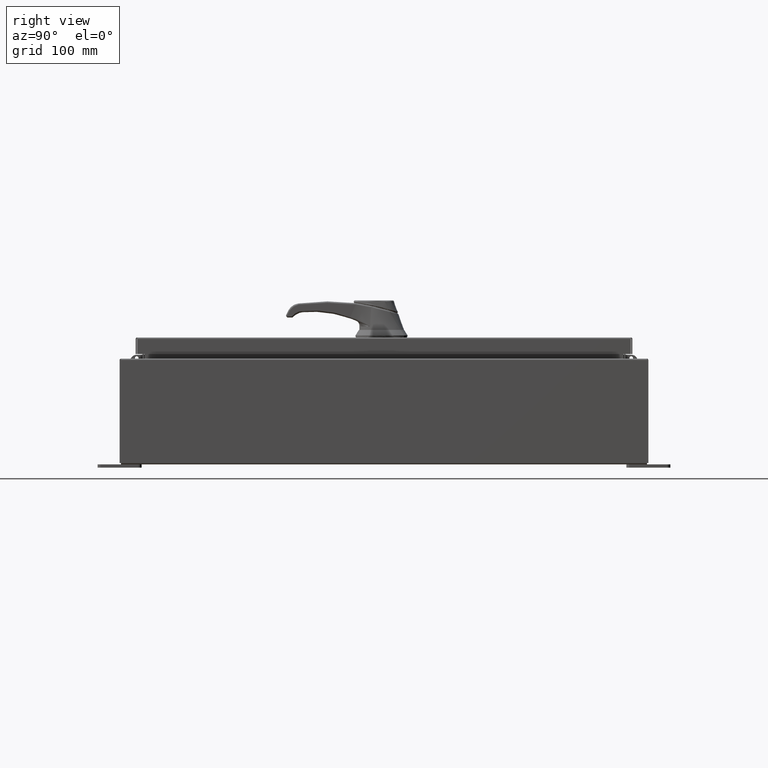
[diagram: clean part render]
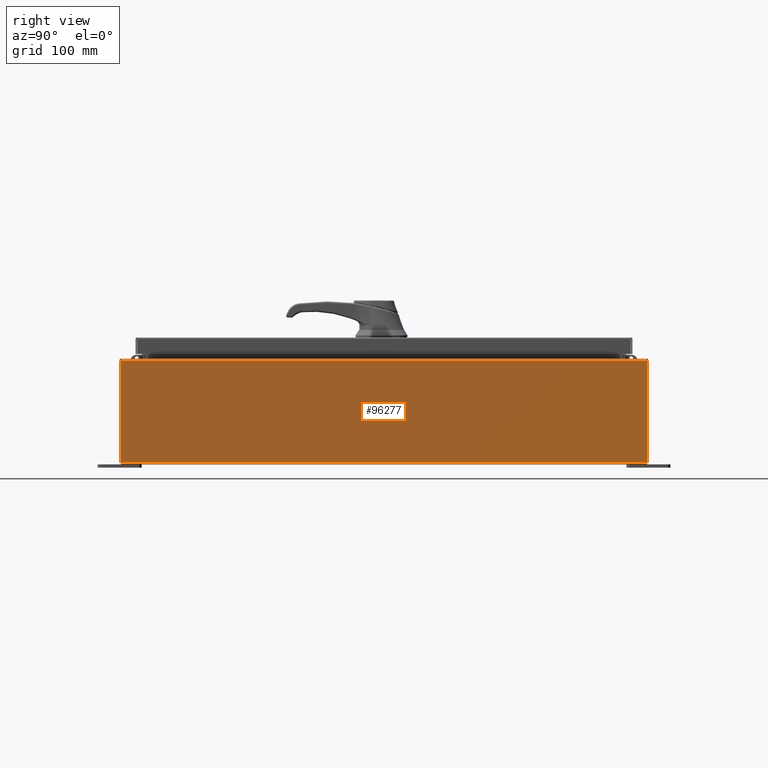
[diagram: same view with one face highlighted and labeled with its STEP entity id]
A machine part, right view. The second image highlights one B-rep face of the part: STEP entity #96277.
In plain terms, the highlighted planar face has unit normal (-1, 0, 0).
Its self-contained STEP definition (entity closure, byte-faithful):
#1147 = ORIENTED_EDGE ( 'NONE', *, *, #93984, .T. ) ;
#1324 = EDGE_LOOP ( 'NONE', ( #49516, #102428, #17170, #1147 ) ) ;
#1585 = VERTEX_POINT ( 'NONE', #83836 ) ;
#3415 = FACE_OUTER_BOUND ( 'NONE', #1324, .T. ) ;
#7787 = DIRECTION ( 'NONE',  ( 3.319545939341922000E-015, 0.0000000000000000000, 1.000000000000000000 ) ) ;
#17170 = ORIENTED_EDGE ( 'NONE', *, *, #58249, .F. ) ;
#20392 = VECTOR ( 'NONE', #59101, 39.37007874015748100 ) ;
#24831 = CARTESIAN_POINT ( 'NONE',  ( 12.00000000000001600, -14.92530000000000200, 5.837600000000001000 ) ) ;
#26323 = DIRECTION ( 'NONE',  ( -3.319545939341922800E-015, 0.0000000000000000000, -1.000000000000000000 ) ) ;
#38133 = VECTOR ( 'NONE', #104980, 39.37007874015748100 ) ;
#38766 = AXIS2_PLACEMENT_3D ( 'NONE', #44156, #62520, #7787 ) ;
#44156 = CARTESIAN_POINT ( 'NONE',  ( 11.99999999999999600, 0.0000000000000000000, -4.009536492811462900E-014 ) ) ;
#49516 = ORIENTED_EDGE ( 'NONE', *, *, #66091, .T. ) ;
#49968 = CARTESIAN_POINT ( 'NONE',  ( 12.00000000000001600, 14.92530000000000200, 5.837600000000001000 ) ) ;
#51498 = VERTEX_POINT ( 'NONE', #24831 ) ;
#52598 = CARTESIAN_POINT ( 'NONE',  ( 11.99999999999999600, -14.92530000000000000, 0.01299999999999998900 ) ) ;
#53334 = PLANE ( 'NONE',  #38766 ) ;
#58249 = EDGE_CURVE ( 'NONE', #77246, #93357, #101635, .T. ) ;
#59101 = DIRECTION ( 'NONE',  ( -0.0000000000000000000, -1.000000000000000000, -0.0000000000000000000 ) ) ;
#62520 = DIRECTION ( 'NONE',  ( -1.000000000000000000, 0.0000000000000000000, 3.319545939341922000E-015 ) ) ;
#66091 = EDGE_CURVE ( 'NONE', #1585, #51498, #68996, .T. ) ;
#66919 = LINE ( 'NONE', #81175, #115605 ) ;
#68432 = CARTESIAN_POINT ( 'NONE',  ( 11.99999999999999600, 14.92530000000000000, -4.009536492811462900E-014 ) ) ;
#68996 = LINE ( 'NONE', #49968, #20392 ) ;
#77183 = VECTOR ( 'NONE', #96017, 39.37007874015748100 ) ;
#77246 = VERTEX_POINT ( 'NONE', #109683 ) ;
#77464 = CARTESIAN_POINT ( 'NONE',  ( 11.99999999999999600, -14.92530000000000000, 0.01299999999999986400 ) ) ;
#81175 = CARTESIAN_POINT ( 'NONE',  ( 11.99999999999999600, -14.92530000000000000, -4.009536492811462900E-014 ) ) ;
#82669 = LINE ( 'NONE', #68432, #38133 ) ;
#83836 = CARTESIAN_POINT ( 'NONE',  ( 12.00000000000001600, 14.92530000000000200, 5.837600000000001000 ) ) ;
#91791 = EDGE_CURVE ( 'NONE', #51498, #93357, #66919, .T. ) ;
#93357 = VERTEX_POINT ( 'NONE', #52598 ) ;
#93984 = EDGE_CURVE ( 'NONE', #77246, #1585, #82669, .T. ) ;
#96017 = DIRECTION ( 'NONE',  ( 2.430368545829587400E-031, -1.000000000000000000, 7.321388497823866900E-017 ) ) ;
#96277 = ADVANCED_FACE ( 'NONE', ( #3415 ), #53334, .F. ) ;
#101635 = LINE ( 'NONE', #77464, #77183 ) ;
#102428 = ORIENTED_EDGE ( 'NONE', *, *, #91791, .T. ) ;
#104980 = DIRECTION ( 'NONE',  ( 3.319545939341922800E-015, 0.0000000000000000000, 1.000000000000000000 ) ) ;
#109683 = CARTESIAN_POINT ( 'NONE',  ( 11.99999999999999600, 14.92530000000000000, 0.01299999999999767800 ) ) ;
#115605 = VECTOR ( 'NONE', #26323, 39.37007874015748100 ) ;